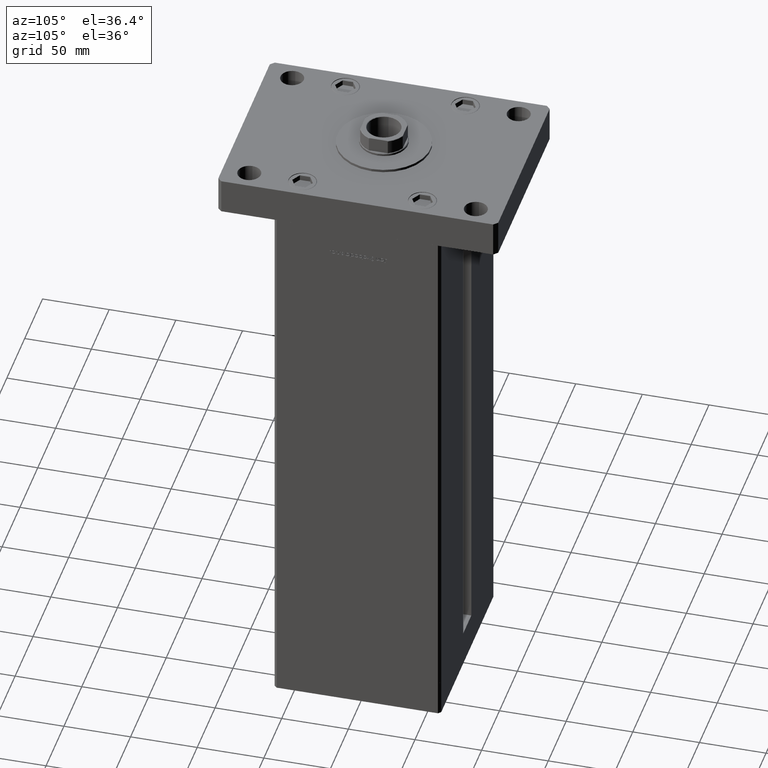
[diagram: clean part render]
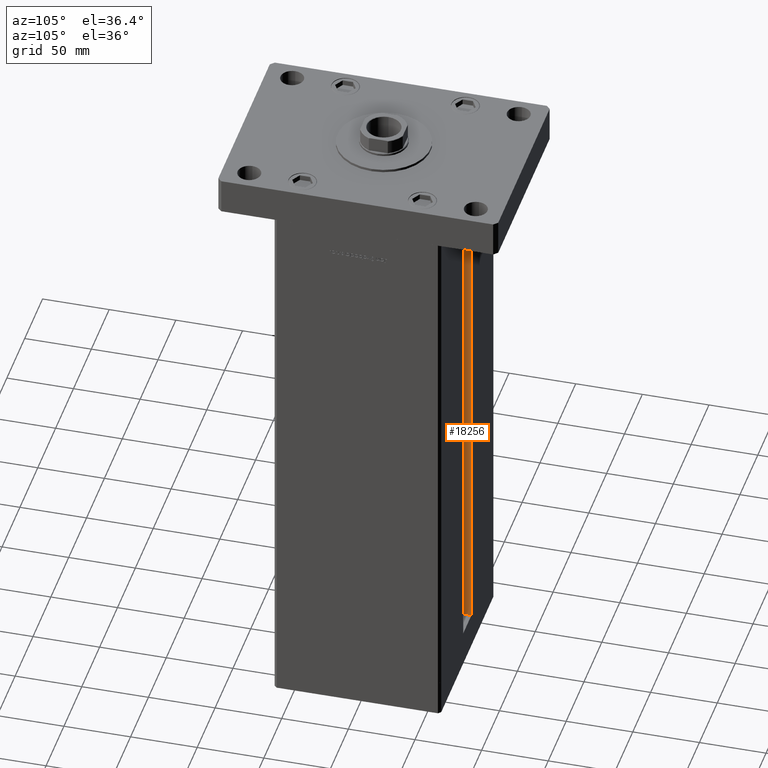
[diagram: same view with one face highlighted and labeled with its STEP entity id]
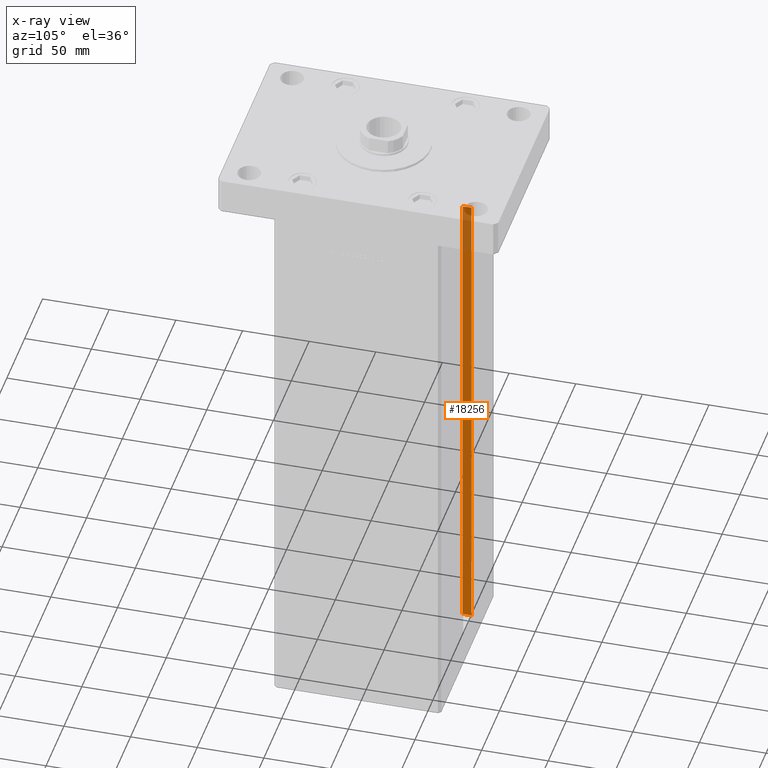
[diagram: x-ray of the same camera — body ghosted, the highlighted face saturated]
A machine part, auxiliary view. The second image highlights one B-rep face of the part: STEP entity #18256.
The next image is the same camera in x-ray: the body ghosted, the highlighted face saturated — about 11% of this face is hidden behind the body in this view.
In plain terms, the highlighted planar face has unit normal (-1, 0, 0).
Its self-contained STEP definition (entity closure, byte-faithful):
#2245 = LINE ( 'NONE', #27506, #35036 ) ;
#5636 = EDGE_CURVE ( 'NONE', #32974, #8905, #46169, .T. ) ;
#6144 = CARTESIAN_POINT ( 'NONE',  ( -11.25000000000000178, 55.99999999999999289, 367.0000000000000000 ) ) ;
#6418 = EDGE_LOOP ( 'NONE', ( #48984, #35808, #49574, #22320 ) ) ;
#6819 = LINE ( 'NONE', #23748, #37115 ) ;
#8243 = EDGE_CURVE ( 'NONE', #24967, #32974, #2245, .T. ) ;
#8905 = VERTEX_POINT ( 'NONE', #6144 ) ;
#10103 = PLANE ( 'NONE',  #15469 ) ;
#15469 = AXIS2_PLACEMENT_3D ( 'NONE', #30019, #30800, #46449 ) ;
#17914 = LINE ( 'NONE', #50788, #31178 ) ;
#18256 = ADVANCED_FACE ( 'NONE', ( #46184 ), #10103, .F. ) ;
#22320 = ORIENTED_EDGE ( 'NONE', *, *, #46563, .F. ) ;
#23748 = CARTESIAN_POINT ( 'NONE',  ( -11.25000000000000178, 62.49999999999999289, 0.000000000000000000 ) ) ;
#24967 = VERTEX_POINT ( 'NONE', #38999 ) ;
#26505 = CARTESIAN_POINT ( 'NONE',  ( -11.25000000000000178, 55.99999999999999289, 0.000000000000000000 ) ) ;
#27244 = DIRECTION ( 'NONE',  ( -0.000000000000000000, -0.000000000000000000, 1.000000000000000000 ) ) ;
#27506 = CARTESIAN_POINT ( 'NONE',  ( -11.25000000000000178, 55.99999999999999289, 0.000000000000000000 ) ) ;
#30019 = CARTESIAN_POINT ( 'NONE',  ( -11.25000000000000178, 55.99999999999999289, 0.000000000000000000 ) ) ;
#30800 = DIRECTION ( 'NONE',  ( -1.000000000000000000, 0.000000000000000000, 0.000000000000000000 ) ) ;
#31159 = VERTEX_POINT ( 'NONE', #46765 ) ;
#31178 = VECTOR ( 'NONE', #38629, 1000.000000000000000 ) ;
#32974 = VERTEX_POINT ( 'NONE', #26505 ) ;
#35036 = VECTOR ( 'NONE', #39091, 1000.000000000000000 ) ;
#35808 = ORIENTED_EDGE ( 'NONE', *, *, #8243, .F. ) ;
#36697 = VECTOR ( 'NONE', #41873, 1000.000000000000000 ) ;
#37115 = VECTOR ( 'NONE', #27244, 1000.000000000000000 ) ;
#38629 = DIRECTION ( 'NONE',  ( 0.000000000000000000, 1.000000000000000000, 0.000000000000000000 ) ) ;
#38999 = CARTESIAN_POINT ( 'NONE',  ( -11.25000000000000178, 62.49999999999999289, 0.000000000000000000 ) ) ;
#39091 = DIRECTION ( 'NONE',  ( -0.000000000000000000, -1.000000000000000000, -0.000000000000000000 ) ) ;
#41873 = DIRECTION ( 'NONE',  ( -0.000000000000000000, -0.000000000000000000, 1.000000000000000000 ) ) ;
#42383 = EDGE_CURVE ( 'NONE', #24967, #31159, #6819, .T. ) ;
#46169 = LINE ( 'NONE', #50239, #36697 ) ;
#46184 = FACE_OUTER_BOUND ( 'NONE', #6418, .T. ) ;
#46449 = DIRECTION ( 'NONE',  ( 0.000000000000000000, 0.000000000000000000, 1.000000000000000000 ) ) ;
#46563 = EDGE_CURVE ( 'NONE', #8905, #31159, #17914, .T. ) ;
#46765 = CARTESIAN_POINT ( 'NONE',  ( -11.25000000000000178, 62.49999999999999289, 367.0000000000000000 ) ) ;
#48984 = ORIENTED_EDGE ( 'NONE', *, *, #5636, .F. ) ;
#49574 = ORIENTED_EDGE ( 'NONE', *, *, #42383, .T. ) ;
#50239 = CARTESIAN_POINT ( 'NONE',  ( -11.25000000000000178, 55.99999999999999289, 0.000000000000000000 ) ) ;
#50788 = CARTESIAN_POINT ( 'NONE',  ( -11.25000000000000178, 0.000000000000000000, 367.0000000000000000 ) ) ;